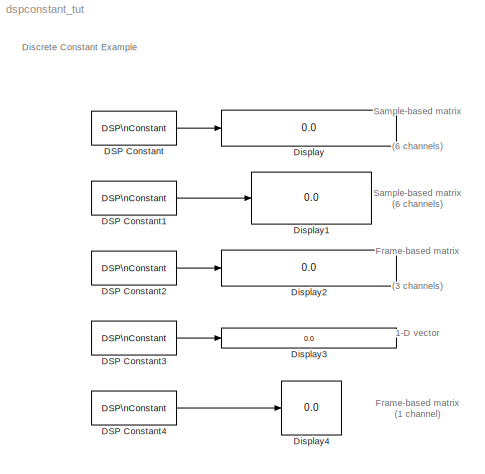
MODEL dspconstant_tut
KIND model
CONFIG AbsTol = auto
CONFIG FixedStep = auto
CONFIG MaxStep = auto
CONFIG MinStep = auto
CONFIG PostLoadFcn = set_param(gcs,'SimulationCommand','Update')
CONFIG RelTol = 1e-3
CONFIG Solver = FixedStepDiscrete
CONFIG SolverMode = Auto
CONFIG StartTime = 0.0
CONFIG StopTime = 10.0
BLOCK [Reference] DSP Constant  REF=dspsrcs3/DSP\nConstant
  FramebasedOutput = off
  InterpretAs1D = off
  Ports = [0, 1]
  SampleMode = Discrete
  SourceBlock = dspsrcs3/DSP\nConstant
  SourceType = DSP Constant
  Ts = 1
  Value = [1 2 3;4 5 6]
BLOCK [Reference] DSP Constant1  REF=dspsrcs3/DSP\nConstant
  FramebasedOutput = off
  InterpretAs1D = off
  Ports = [0, 1]
  SampleMode = Discrete
  SourceBlock = dspsrcs3/DSP\nConstant
  SourceType = DSP Constant
  Ts = 1
  Value = [1 2 3;4 5 6]'
BLOCK [Reference] DSP Constant2  REF=dspsrcs3/DSP\nConstant
  FramebasedOutput = on
  InterpretAs1D = off
  Ports = [0, 1]
  SampleMode = Discrete
  SourceBlock = dspsrcs3/DSP\nConstant
  SourceType = DSP Constant
  Ts = 1
  Value = randn(2,3)
BLOCK [Reference] DSP Constant3  REF=dspsrcs3/DSP\nConstant
  FramebasedOutput = off
  InterpretAs1D = on
  Ports = [0, 1]
  SampleMode = Discrete
  SourceBlock = dspsrcs3/DSP\nConstant
  SourceType = DSP Constant
  Ts = 1
  Value = [1 2 3]
BLOCK [Reference] DSP Constant4  REF=dspsrcs3/DSP\nConstant
  FramebasedOutput = on
  InterpretAs1D = off
  Ports = [0, 1]
  SampleMode = Discrete
  SourceBlock = dspsrcs3/DSP\nConstant
  SourceType = DSP Constant
  Ts = 1
  Value = [1 2 3]'
BLOCK [Display] Display
  Decimation = 1
  Floating = off
  Format = short
  Ports = [1]
  SampleTime = -1
BLOCK [Display] Display1
  Decimation = 1
  Floating = off
  Format = short
  Ports = [1]
  SampleTime = -1
BLOCK [Display] Display2
  Decimation = 1
  Floating = off
  Format = short
  Ports = [1]
  SampleTime = -1
BLOCK [Display] Display3
  Decimation = 1
  Floating = off
  Format = short
  Ports = [1]
  SampleTime = -1
BLOCK [Display] Display4
  Decimation = 1
  Floating = off
  Format = short
  Ports = [1]
  SampleTime = -1
LINE DSP Constant1:1 -> Display1:1
LINE DSP Constant2:1 -> Display2:1
LINE DSP Constant3:1 -> Display3:1
LINE DSP Constant4:1 -> Display4:1
LINE DSP Constant:1 -> Display:1
